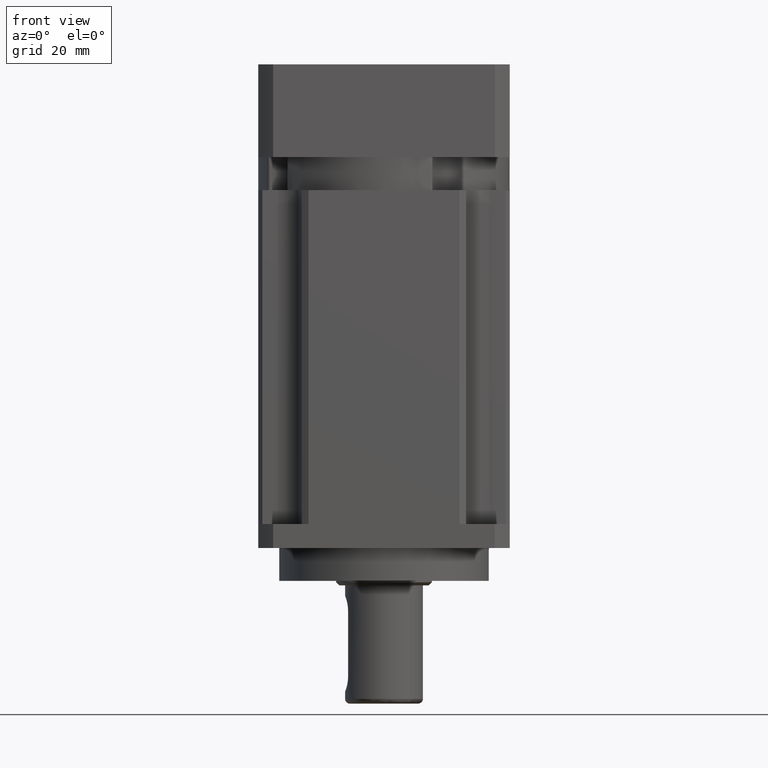
[diagram: clean part render]
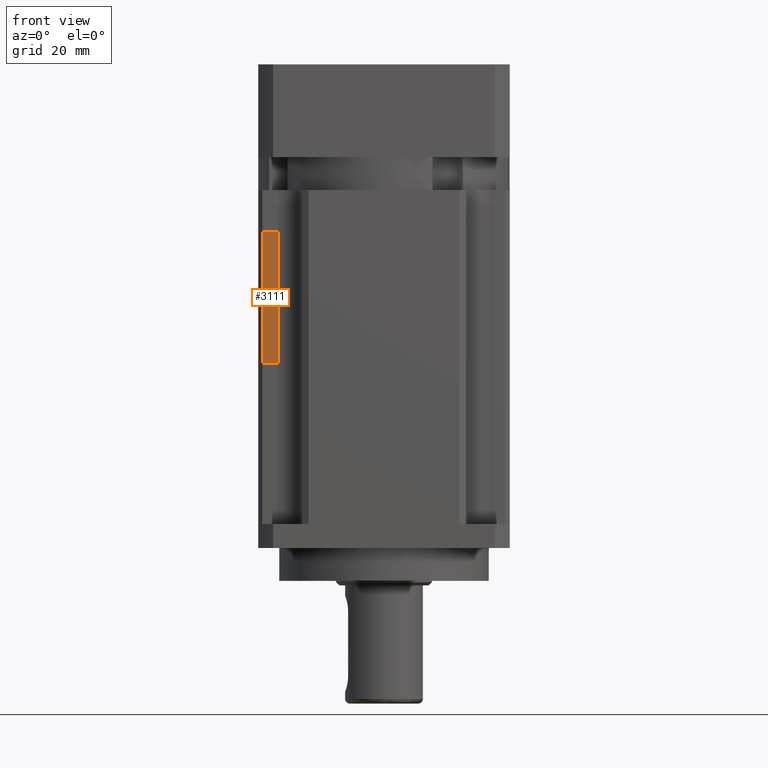
[diagram: same view with one face highlighted and labeled with its STEP entity id]
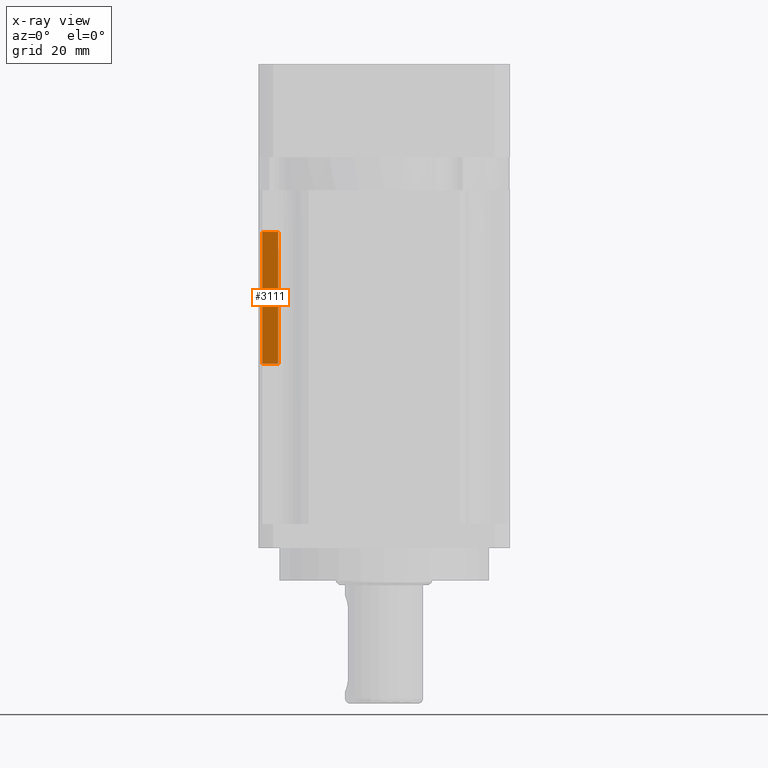
[diagram: x-ray of the same camera — body ghosted, the highlighted face saturated]
A machine part, front view. The second image highlights one B-rep face of the part: STEP entity #3111.
The next image is the same camera in x-ray: the body ghosted, the highlighted face saturated — about 0% of this face is hidden behind the body in this view.
In plain terms, the highlighted planar face has unit normal (0, 1, 0).
Its self-contained STEP definition (entity closure, byte-faithful):
#505 = FACE_OUTER_BOUND ( 'NONE', #2151, .T. ) ;
#562 = VERTEX_POINT ( 'NONE', #9320 ) ;
#978 = ORIENTED_EDGE ( 'NONE', *, *, #7594, .T. ) ;
#1970 = LINE ( 'NONE', #4494, #5789 ) ;
#1997 = CARTESIAN_POINT ( 'NONE',  ( 3673.930492683092800, 1402.660463026901700, 0.0000000000000000000 ) ) ;
#2151 = EDGE_LOOP ( 'NONE', ( #4763, #8948, #10714, #978 ) ) ;
#2270 = LINE ( 'NONE', #8527, #9458 ) ;
#2550 = DIRECTION ( 'NONE',  ( 0.0000000000000000000, 1.000000000000000000, 0.0000000000000000000 ) ) ;
#3111 = ADVANCED_FACE ( 'NONE', ( #505 ), #4456, .F. ) ;
#4263 = VERTEX_POINT ( 'NONE', #9796 ) ;
#4456 = PLANE ( 'NONE',  #7631 ) ;
#4494 = CARTESIAN_POINT ( 'NONE',  ( 3653.603875950607300, 1402.660463026901700, 0.0000000000000000000 ) ) ;
#4763 = ORIENTED_EDGE ( 'NONE', *, *, #8024, .F. ) ;
#5424 = VERTEX_POINT ( 'NONE', #6090 ) ;
#5789 = VECTOR ( 'NONE', #6243, 1000.000000000000000 ) ;
#6078 = DIRECTION ( 'NONE',  ( -0.0000000000000000000, 0.0000000000000000000, -1.000000000000000000 ) ) ;
#6090 = CARTESIAN_POINT ( 'NONE',  ( 3671.281545294310500, 1402.660463026901700, 0.0000000000000000000 ) ) ;
#6147 = CARTESIAN_POINT ( 'NONE',  ( 3671.281545276775900, 1402.660463026901700, 22.00000000000000000 ) ) ;
#6243 = DIRECTION ( 'NONE',  ( 1.000000000000000000, 0.0000000000000000000, -0.0000000000000000000 ) ) ;
#7308 = LINE ( 'NONE', #6147, #7592 ) ;
#7592 = VECTOR ( 'NONE', #8702, 1000.000000000000000 ) ;
#7594 = EDGE_CURVE ( 'NONE', #5424, #11275, #1970, .T. ) ;
#7631 = AXIS2_PLACEMENT_3D ( 'NONE', #7945, #2550, #8833 ) ;
#7945 = CARTESIAN_POINT ( 'NONE',  ( 3671.281545276775900, 1402.660463026901700, 22.00000000000000000 ) ) ;
#8024 = EDGE_CURVE ( 'NONE', #4263, #11275, #9016, .T. ) ;
#8527 = CARTESIAN_POINT ( 'NONE',  ( 3671.281545276775900, 1402.660463026901700, 22.00000000000000000 ) ) ;
#8600 = DIRECTION ( 'NONE',  ( 0.0000000000000000000, -0.0000000000000000000, 1.000000000000000000 ) ) ;
#8702 = DIRECTION ( 'NONE',  ( 1.000000000000000000, 0.0000000000000000000, -0.0000000000000000000 ) ) ;
#8833 = DIRECTION ( 'NONE',  ( 0.0000000000000000000, -0.0000000000000000000, 1.000000000000000000 ) ) ;
#8948 = ORIENTED_EDGE ( 'NONE', *, *, #9431, .F. ) ;
#9016 = LINE ( 'NONE', #11417, #9716 ) ;
#9320 = CARTESIAN_POINT ( 'NONE',  ( 3671.281545294310500, 1402.660463026901700, 22.00000000000000000 ) ) ;
#9431 = EDGE_CURVE ( 'NONE', #562, #4263, #7308, .T. ) ;
#9458 = VECTOR ( 'NONE', #8600, 1000.000000000000000 ) ;
#9716 = VECTOR ( 'NONE', #6078, 1000.000000000000000 ) ;
#9796 = CARTESIAN_POINT ( 'NONE',  ( 3673.930492683092800, 1402.660463026901700, 22.00000000000000000 ) ) ;
#10355 = EDGE_CURVE ( 'NONE', #5424, #562, #2270, .T. ) ;
#10714 = ORIENTED_EDGE ( 'NONE', *, *, #10355, .F. ) ;
#11275 = VERTEX_POINT ( 'NONE', #1997 ) ;
#11417 = CARTESIAN_POINT ( 'NONE',  ( 3673.930492683092300, 1402.660463026901700, 22.00000000000000000 ) ) ;